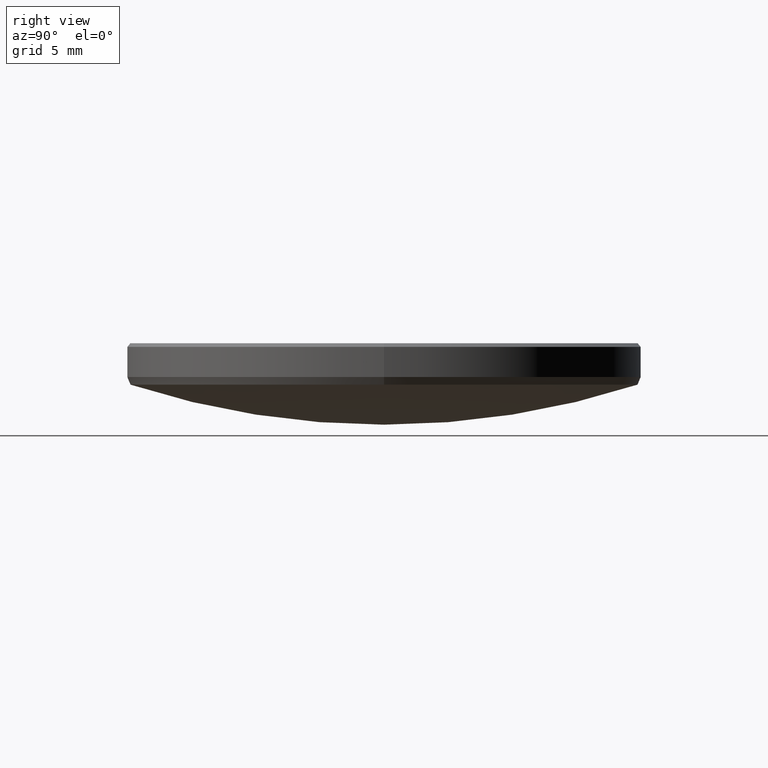
[diagram: clean part render]
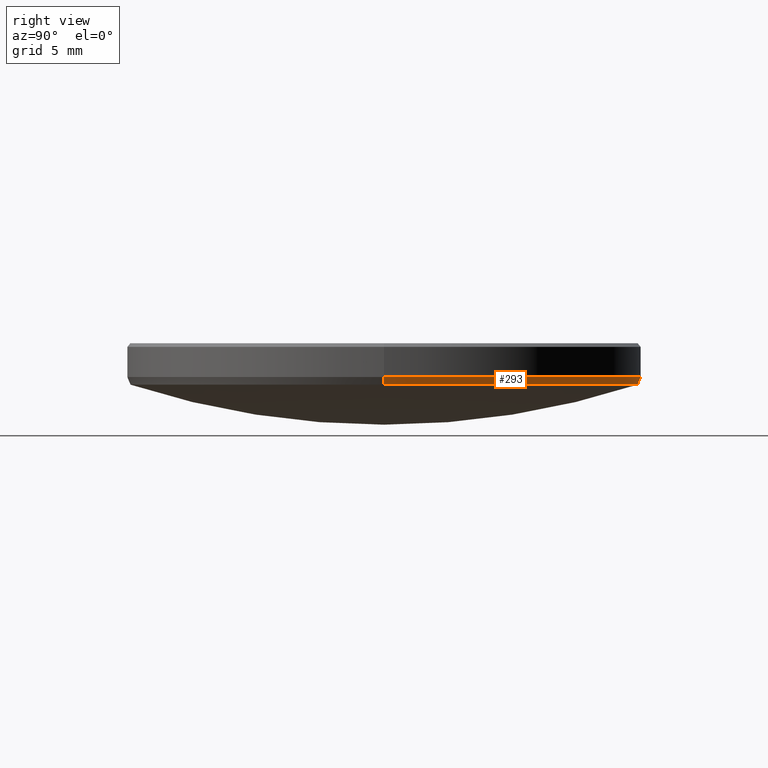
[diagram: same view with one face highlighted and labeled with its STEP entity id]
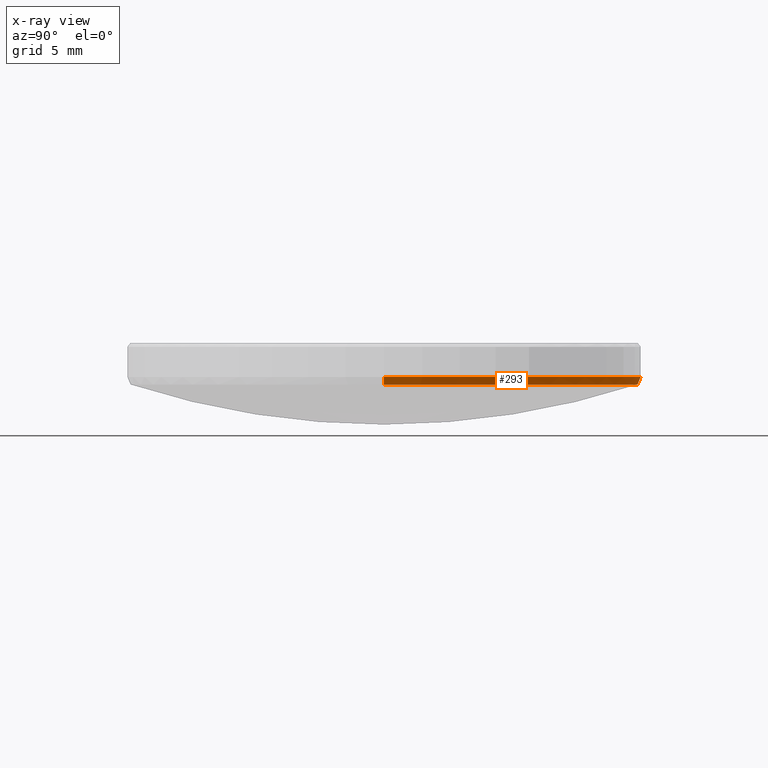
[diagram: x-ray of the same camera — body ghosted, the highlighted face saturated]
A machine part, right view. The second image highlights one B-rep face of the part: STEP entity #293.
The next image is the same camera in x-ray: the body ghosted, the highlighted face saturated — about 0% of this face is hidden behind the body in this view.
In plain terms, the highlighted conical surface has half-angle 26.771 deg.
Its self-contained STEP definition (entity closure, byte-faithful):
#5 = EDGE_CURVE ( 'NONE', #307, #19, #41, .T. ) ;
#19 = VERTEX_POINT ( 'NONE', #154 ) ;
#25 = EDGE_LOOP ( 'NONE', ( #217, #131, #218, #331, #202 ) ) ;
#39 = DIRECTION ( 'NONE',  ( 1.000000000000000000, 0.000000000000000000, 0.000000000000000000 ) ) ;
#41 = LINE ( 'NONE', #121, #312 ) ;
#51 = VERTEX_POINT ( 'NONE', #129 ) ;
#56 = CARTESIAN_POINT ( 'NONE',  ( 12.69999999999999929, 0.000000000000000000, 4.313967534857077624 ) ) ;
#59 = DIRECTION ( 'NONE',  ( 1.000000000000000000, 0.000000000000000000, 0.000000000000000000 ) ) ;
#61 = CONICAL_SURFACE ( 'NONE', #182, 12.69999999999999929, 0.4672503280471582698 ) ;
#62 = CARTESIAN_POINT ( 'NONE',  ( -12.51034897911231170, 1.543688659132881617E-15, 3.938057364562333351 ) ) ;
#65 = DIRECTION ( 'NONE',  ( 0.000000000000000000, 0.000000000000000000, -1.000000000000000000 ) ) ;
#86 = CARTESIAN_POINT ( 'NONE',  ( 0.000000000000000000, 0.000000000000000000, 3.938057364562333351 ) ) ;
#109 = CARTESIAN_POINT ( 'NONE',  ( 0.000000000000000000, 0.000000000000000000, 4.313967534857077624 ) ) ;
#116 = DIRECTION ( 'NONE',  ( 1.000000000000000000, 0.000000000000000000, 0.000000000000000000 ) ) ;
#117 = FACE_OUTER_BOUND ( 'NONE', #25, .T. ) ;
#121 = CARTESIAN_POINT ( 'NONE',  ( -12.69999999999999929, 1.555301434917138433E-15, 4.313967534857077624 ) ) ;
#123 = DIRECTION ( 'NONE',  ( -0.4504330560855231425, 5.516214003652961775E-17, 0.8928102049066508616 ) ) ;
#129 = CARTESIAN_POINT ( 'NONE',  ( 12.69999999999999929, 1.555301434917138433E-15, 4.313967534857077624 ) ) ;
#130 = CIRCLE ( 'NONE', #316, 12.51034897911231170 ) ;
#131 = ORIENTED_EDGE ( 'NONE', *, *, #5, .T. ) ;
#150 = EDGE_CURVE ( 'NONE', #307, #198, #289, .T. ) ;
#154 = CARTESIAN_POINT ( 'NONE',  ( -12.69999999999999929, 0.000000000000000000, 4.313967534857077624 ) ) ;
#160 = CARTESIAN_POINT ( 'NONE',  ( 0.000000000000000000, 0.000000000000000000, 4.313967534857077624 ) ) ;
#161 = CARTESIAN_POINT ( 'NONE',  ( 0.000000000000000000, 12.51034897911230992, 3.938057364562333351 ) ) ;
#165 = DIRECTION ( 'NONE',  ( -1.000000000000000000, 0.000000000000000000, 0.000000000000000000 ) ) ;
#167 = DIRECTION ( 'NONE',  ( -0.000000000000000000, -0.000000000000000000, 1.000000000000000000 ) ) ;
#182 = AXIS2_PLACEMENT_3D ( 'NONE', #109, #167, #39 ) ;
#191 = AXIS2_PLACEMENT_3D ( 'NONE', #160, #259, #165 ) ;
#196 = CIRCLE ( 'NONE', #191, 12.69999999999999929 ) ;
#198 = VERTEX_POINT ( 'NONE', #161 ) ;
#201 = AXIS2_PLACEMENT_3D ( 'NONE', #233, #278, #59 ) ;
#202 = ORIENTED_EDGE ( 'NONE', *, *, #326, .F. ) ;
#207 = EDGE_CURVE ( 'NONE', #276, #51, #281, .T. ) ;
#209 = CARTESIAN_POINT ( 'NONE',  ( 12.51034897911231170, 0.000000000000000000, 3.938057364562333351 ) ) ;
#217 = ORIENTED_EDGE ( 'NONE', *, *, #150, .F. ) ;
#218 = ORIENTED_EDGE ( 'NONE', *, *, #242, .F. ) ;
#233 = CARTESIAN_POINT ( 'NONE',  ( 0.000000000000000000, 0.000000000000000000, 3.938057364562333351 ) ) ;
#234 = DIRECTION ( 'NONE',  ( 0.4504330560855231425, 0.000000000000000000, 0.8928102049066508616 ) ) ;
#242 = EDGE_CURVE ( 'NONE', #51, #19, #196, .T. ) ;
#247 = VECTOR ( 'NONE', #234, 1000.000000000000114 ) ;
#259 = DIRECTION ( 'NONE',  ( -0.000000000000000000, -0.000000000000000000, 1.000000000000000000 ) ) ;
#276 = VERTEX_POINT ( 'NONE', #209 ) ;
#278 = DIRECTION ( 'NONE',  ( 0.000000000000000000, 0.000000000000000000, -1.000000000000000000 ) ) ;
#281 = LINE ( 'NONE', #56, #247 ) ;
#289 = CIRCLE ( 'NONE', #201, 12.51034897911231170 ) ;
#293 = ADVANCED_FACE ( 'NONE', ( #117 ), #61, .T. ) ;
#307 = VERTEX_POINT ( 'NONE', #62 ) ;
#312 = VECTOR ( 'NONE', #123, 1000.000000000000114 ) ;
#316 = AXIS2_PLACEMENT_3D ( 'NONE', #86, #65, #116 ) ;
#326 = EDGE_CURVE ( 'NONE', #198, #276, #130, .T. ) ;
#331 = ORIENTED_EDGE ( 'NONE', *, *, #207, .F. ) ;